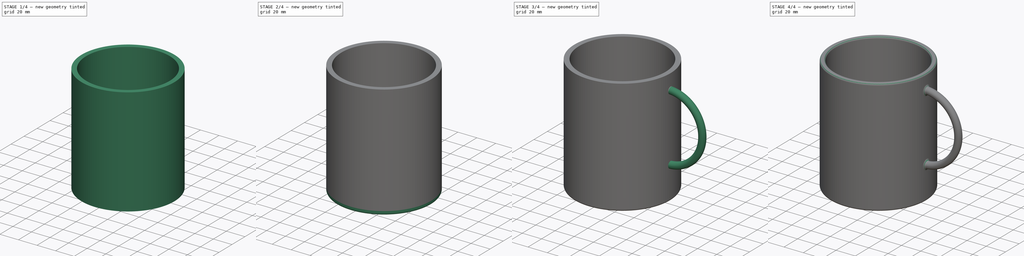
[diagram: build sequence overview — one tinted view per stage of 4, left to right]
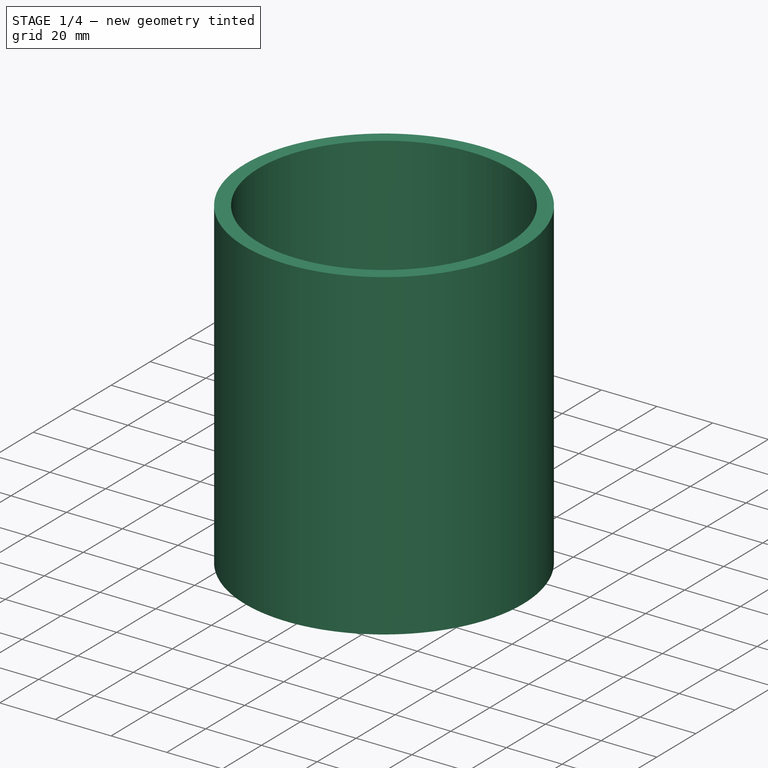
[diagram: stage 1 of 4 — iso view after this stage's code; geometry added in this stage tinted green]
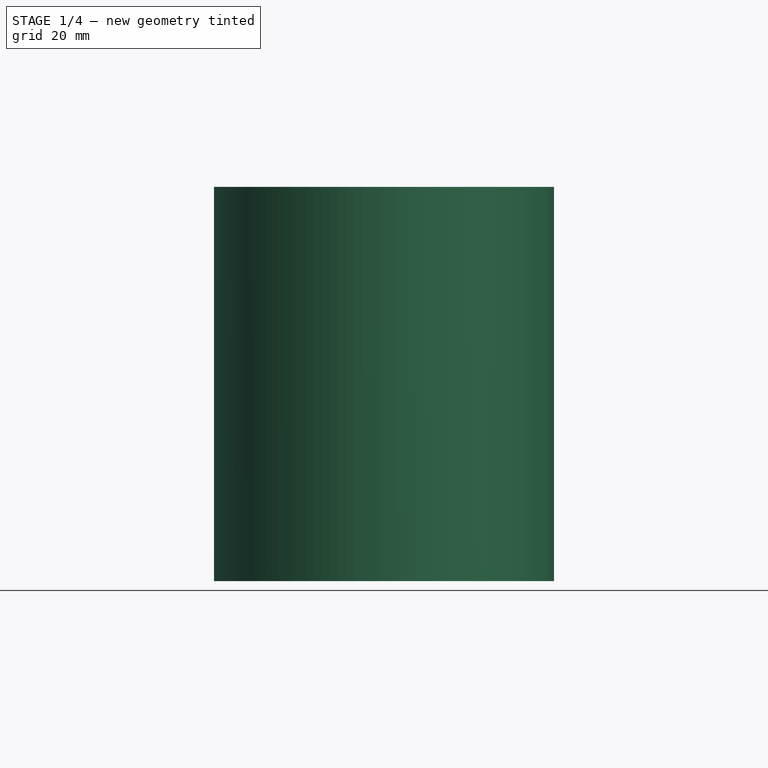
[diagram: stage 1 of 4 — front view after this stage's code; geometry added in this stage tinted green]
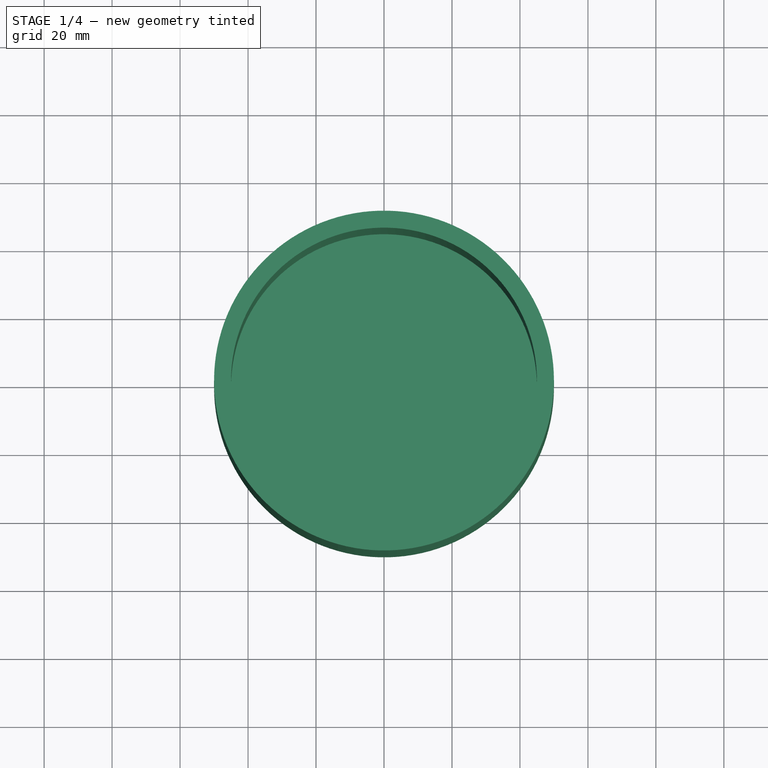
[diagram: stage 1 of 4 — top view after this stage's code; geometry added in this stage tinted green]
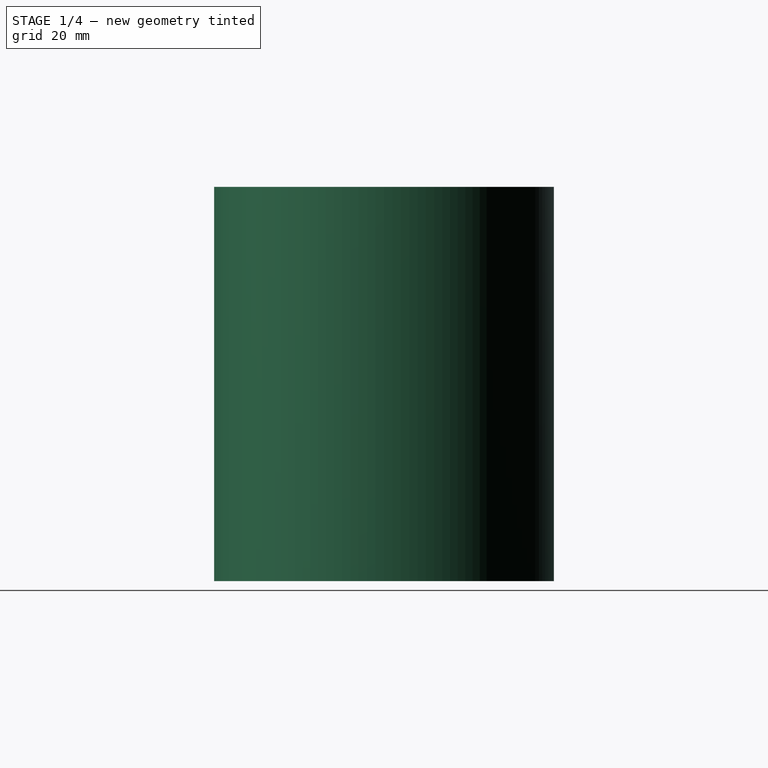
[diagram: stage 1 of 4 — right view after this stage's code; geometry added in this stage tinted green]
FCSTD DOCUMENT  (FreeCAD 2023.521R36908 (Git))
Label: mug-design
License: All rights reserved
objects: Sketcher::SketchObject×5, PartDesign::Fillet×5, PartDesign::Pad×3, Spreadsheet::Sheet×1, PartDesign::Plane×1, PartDesign::AdditivePipe×1, PartDesign::Body×1, App::Part×1
note: 39 computed .brp shape members not serialized (recipe doc carries the construction recipe); baked Part::Feature solids carry a one-line shape summary decoded from their .brp

FEATURE [Sketcher::SketchObject] Sketch  label="cylinder"
  ArcFitTolerance = 1e-06
  AttachmentSupport = -> [XY_Plane]
  ExternalBSplineMaxDegree = 5
  ExternalBSplineTolerance = 0.0001
  FullyConstrained = true
  InternalTolerance = 1e-06
  InvalidShape = false
  MakeInternals = false
  MapMode = 5
  Support = -> [XY_Plane]
  TreeRank = 14
  ValidateShape = false
  expr: Constraints[1] = Spreadsheet.cup_outer_radius
  expr: Constraints[3] = <<parameters>>.cup_outer_radius - <<parameters>>.cup_thickness
  sketch-geometry (2):
    g0: Circle CenterX=0 CenterY=0 CenterZ=0 NormalX=0 NormalY=0 NormalZ=1 AngleXU=0 Radius=50
    g1: Circle CenterX=0 CenterY=0 CenterZ=0 NormalX=0 NormalY=0 NormalZ=1 AngleXU=0 Radius=45
  constraints (4):
    c: Coincident(g0,g-1)
    c: Radius(g0) = 50
    c: Coincident(g1,g0)
    c: Radius(g1) = 45
FEATURE [Spreadsheet::Sheet] Spreadsheet  label="parameters"
  PythonMode = false
  ShowCells = 0
  TreeRank = 15
  cells = A1=cup_outer_radius; B1(cup_outer_radius)=50; A2=cup_thickness; B2(cup_thickness)=5; A3=cup_height; B3(cup_height)=120; A5=base_thickness; B5(base_thickness)==B2; A6=base_foot_height; B6(base_foot_height)=4; A7=base_height; B7(base_height)==B5 + B6; A9=base_foot_outer_fillet; B9(base_foot_outer_fillet)=2; A10=base_foot_inner_fillet; B10(base_foot_inner_fillet)=2; A11=base_foot_inner_top_fillet; B11(base_foot_inner_top_fillet)=3; A13=handle_merge_depth; B13(handle_merge_depth)=2; A14=handle_radius; B14(handle_radius)=35; A15=handle_thickness_radius; B15(handle_thickness_radius)=3.5; A16=handle_fillet; B16(handle_fillet)=2; A17=cup_top_fillet; B17(cup_top_fillet)=2; A20=cup_text_size; B20(cup_text_size)=8
FEATURE [PartDesign::Pad] Pad  label="cylinder001"
  AddSubType = 0
  AlongSketchNormal = false
  AutoTaperInnerAngle = true
  CheckUpToFaceLimits = true
  ClaimChildren = false
  Direction = (0,0,1)
  Fit = 0
  FitJoin = 0
  InnerFit = 0
  InnerFitJoin = 0
  InvalidShape = false
  Length = 111
  Length2 = 10
  Linearize = true
  NewSolid = false
  Profile = -> Sketch [Edge2,Edge1]
  ReferenceAxis = -> Sketch [N_Axis]
  Suppress = false
  TaperInnerAngle = 0
  TaperInnerAngleRev = 0
  TreeRank = 16
  Type = 0
  ValidateShape = true
  _ProfileBasedVersion = 1
  expr: Length = <<parameters>>.cup_height - <<parameters>>.base_height
FEATURE [Sketcher::SketchObject] Sketch001  label="flate_base"
  ArcFitTolerance = 1e-06
  AttachmentSupport = -> [Pad]
  ExternalBSplineMaxDegree = 5
  ExternalBSplineTolerance = 0.0001
  FullyConstrained = true
  InternalTolerance = 1e-06
  InvalidShape = false
  MakeInternals = false
  MapMode = 5
  Placement = pos=(0,0,0) rot=(1,0,0;3.14159rad)
  Support = -> [Pad]
  TreeRank = 29
  ValidateShape = false
  expr: Constraints[1] = <<parameters>>.cup_outer_radius
  sketch-geometry (1):
    g0: Circle CenterX=0 CenterY=0 CenterZ=0 NormalX=0 NormalY=0 NormalZ=1 AngleXU=0 Radius=50
  constraints (2):
    c: Coincident(g0,g-1)
    c: Radius(g0) = 50
FEATURE [PartDesign::Pad] Pad001  label="base_flate"
  AddSubType = 0
  AlongSketchNormal = false
  AutoTaperInnerAngle = true
  BaseFeature = -> Pad
  CheckUpToFaceLimits = true
  ClaimChildren = false
  Direction = (0,0,-1)
  Fit = 0
  FitJoin = 0
  InnerFit = 0
  InnerFitJoin = 0
  InvalidShape = false
  Length = 5
  Length2 = 10
  Linearize = true
  NewSolid = false
  Profile = -> Sketch001
  ReferenceAxis = -> Sketch001 [N_Axis]
  Suppress = false
  TaperInnerAngle = 0
  TaperInnerAngleRev = 0
  TreeRank = 30
  Type = 0
  ValidateShape = true
  _ProfileBasedVersion = 1
  expr: Length = <<parameters>>.base_thickness
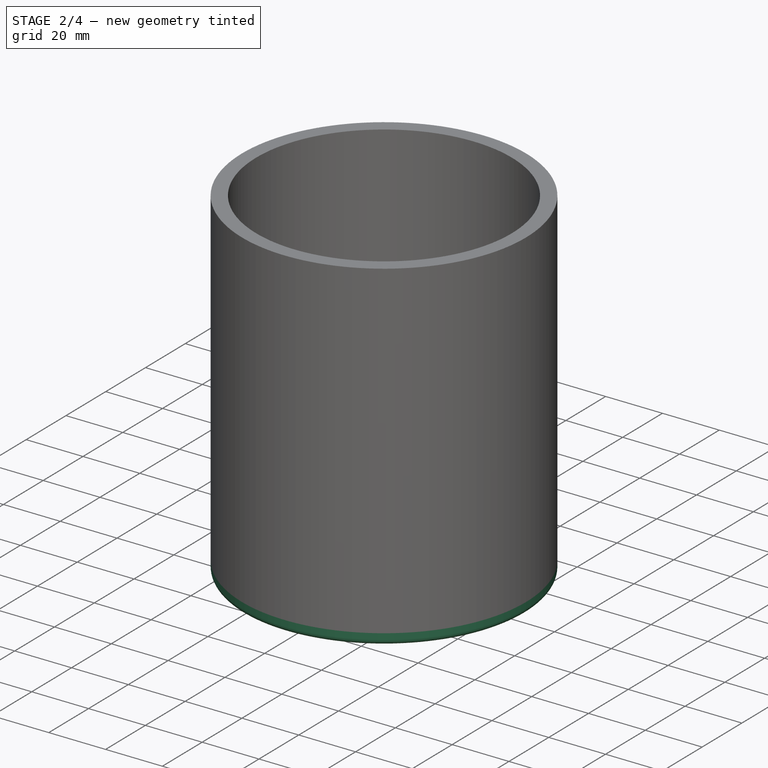
[diagram: stage 2 of 4 — iso view after this stage's code; geometry added in this stage tinted green]
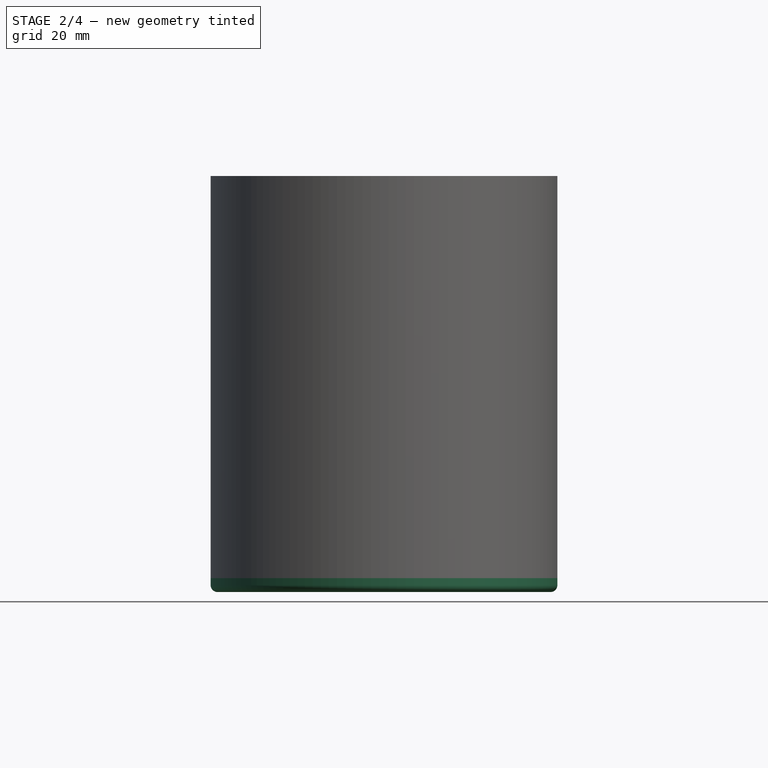
[diagram: stage 2 of 4 — front view after this stage's code; geometry added in this stage tinted green]
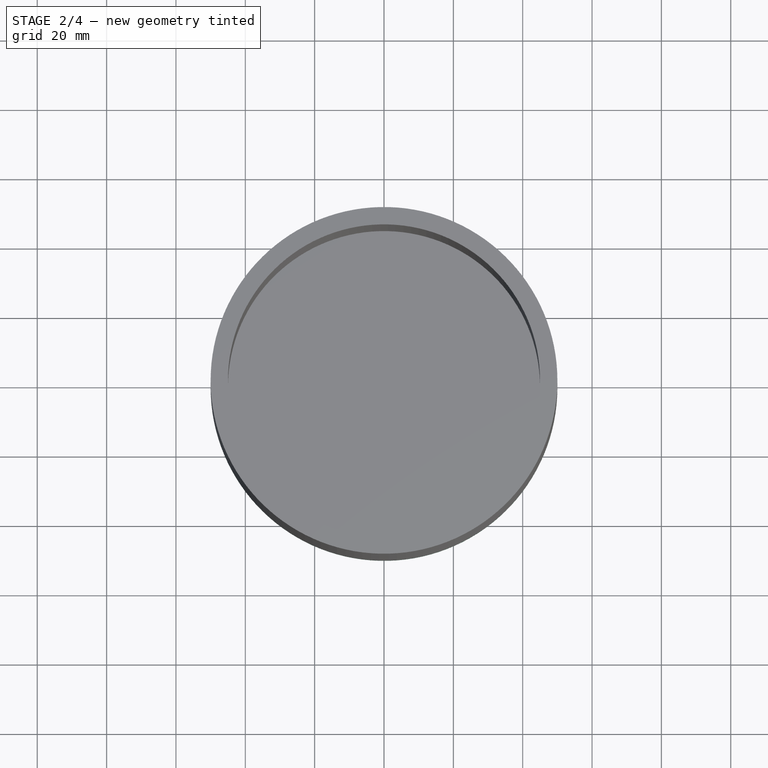
[diagram: stage 2 of 4 — top view after this stage's code; geometry added in this stage tinted green]
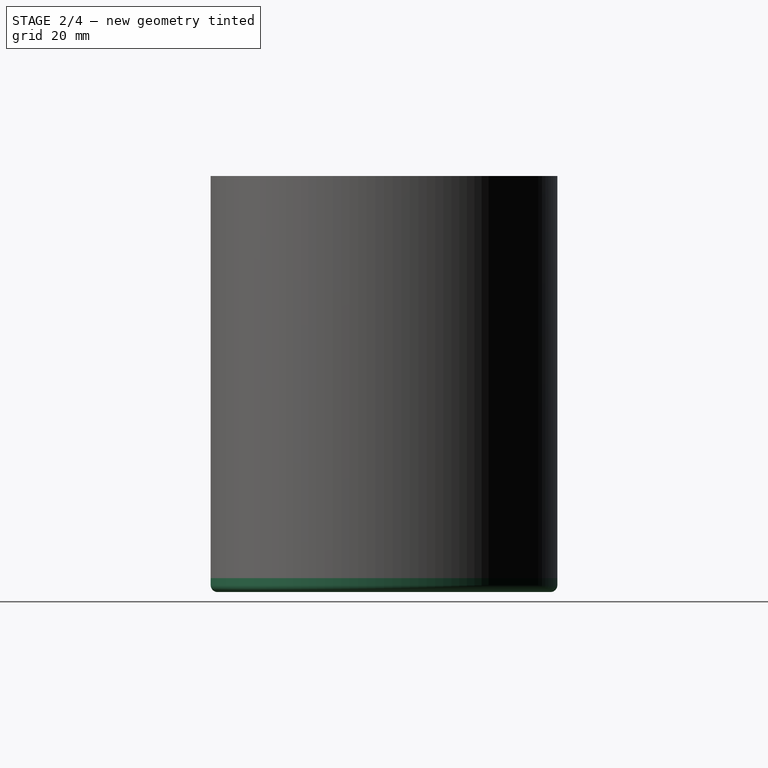
[diagram: stage 2 of 4 — right view after this stage's code; geometry added in this stage tinted green]
FEATURE [Sketcher::SketchObject] Sketch002  label="base_foot"
  ArcFitTolerance = 1e-06
  AttachmentSupport = -> [Pad001]
  ExternalBSplineMaxDegree = 5
  ExternalBSplineTolerance = 0.0001
  FullyConstrained = true
  InternalTolerance = 1e-06
  InvalidShape = false
  MakeInternals = false
  MapMode = 5
  Placement = pos=(0,0,-5) rot=(1,0,0;3.14159rad)
  Support = -> [Pad001]
  TreeRank = 31
  ValidateShape = false
  expr: Constraints[2] = <<parameters>>.cup_outer_radius
  expr: Constraints[3] = <<parameters>>.cup_outer_radius - <<parameters>>.cup_thickness
  sketch-geometry (2):
    g0: Circle CenterX=0 CenterY=0 CenterZ=0 NormalX=0 NormalY=0 NormalZ=1 AngleXU=0 Radius=50
    g1: Circle CenterX=0 CenterY=0 CenterZ=0 NormalX=0 NormalY=0 NormalZ=1 AngleXU=0 Radius=45
  constraints (4):
    c: Coincident(g-1,g1)
    c: Coincident(g0,g1)
    c: Radius(g0) = 50
    c: Radius(g1) = 45
FEATURE [PartDesign::Pad] Pad002  label="base_foot001"
  AddSubType = 0
  AlongSketchNormal = false
  AutoTaperInnerAngle = true
  BaseFeature = -> Pad001
  CheckUpToFaceLimits = true
  ClaimChildren = false
  Direction = (0,0,-1)
  Fit = 0
  FitJoin = 0
  InnerFit = 0
  InnerFitJoin = 0
  InvalidShape = false
  Length = 4
  Length2 = 10
  Linearize = true
  NewSolid = false
  Profile = -> Sketch002
  ReferenceAxis = -> Sketch002 [N_Axis]
  Suppress = false
  TaperInnerAngle = 0
  TaperInnerAngleRev = 0
  TreeRank = 32
  Type = 0
  ValidateShape = true
  _ProfileBasedVersion = 1
  expr: Length = <<parameters>>.base_foot_height
FEATURE [PartDesign::Fillet] Fillet  label="base_foot_outer"
  AddSubType = 0
  Base = -> Pad002 [Edge8]
  BaseFeature = -> Pad002
  InvalidShape = false
  NewSolid = false
  Radius = 2
  SupportTransform = false
  Suppress = false
  TreeRank = 33
  UseAllEdges = false
  ValidateShape = true
  expr: Radius = <<parameters>>.base_foot_outer_fillet
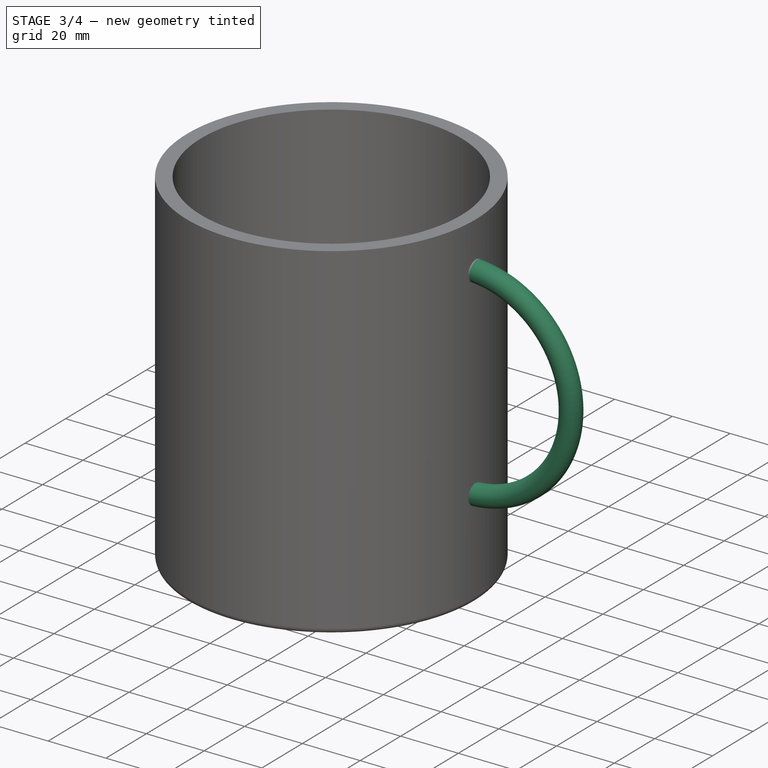
[diagram: stage 3 of 4 — iso view after this stage's code; geometry added in this stage tinted green]
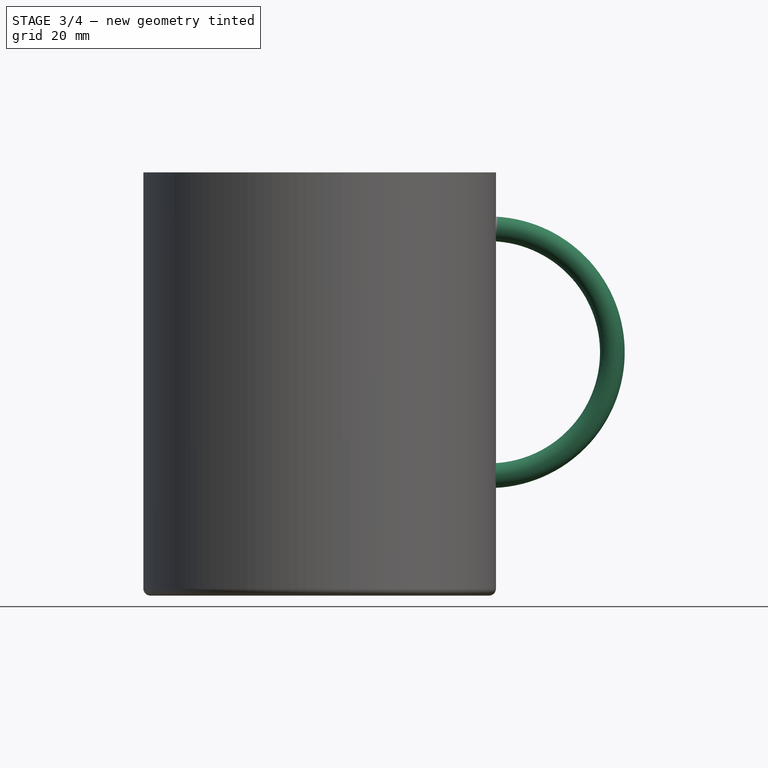
[diagram: stage 3 of 4 — front view after this stage's code; geometry added in this stage tinted green]
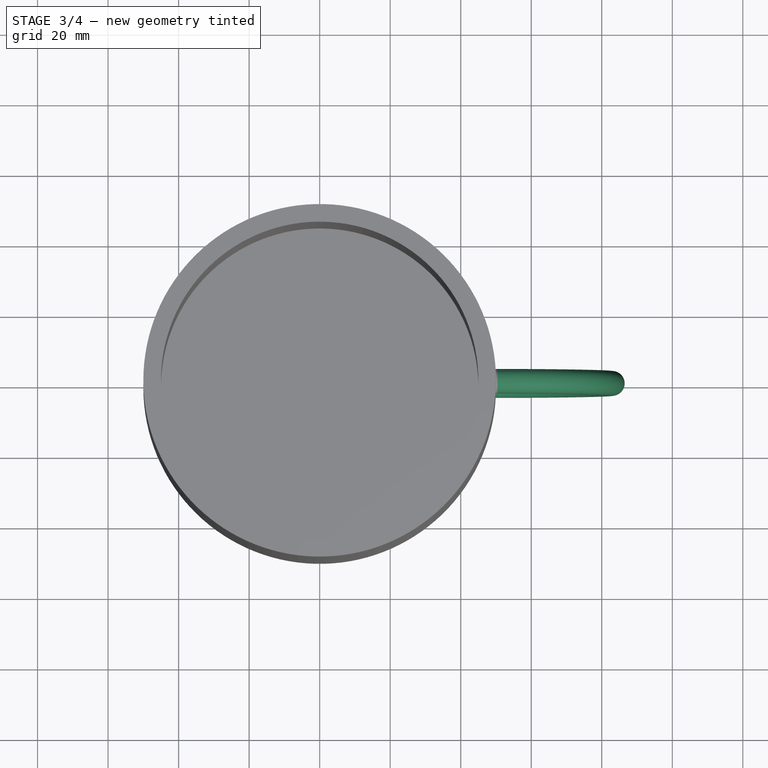
[diagram: stage 3 of 4 — top view after this stage's code; geometry added in this stage tinted green]
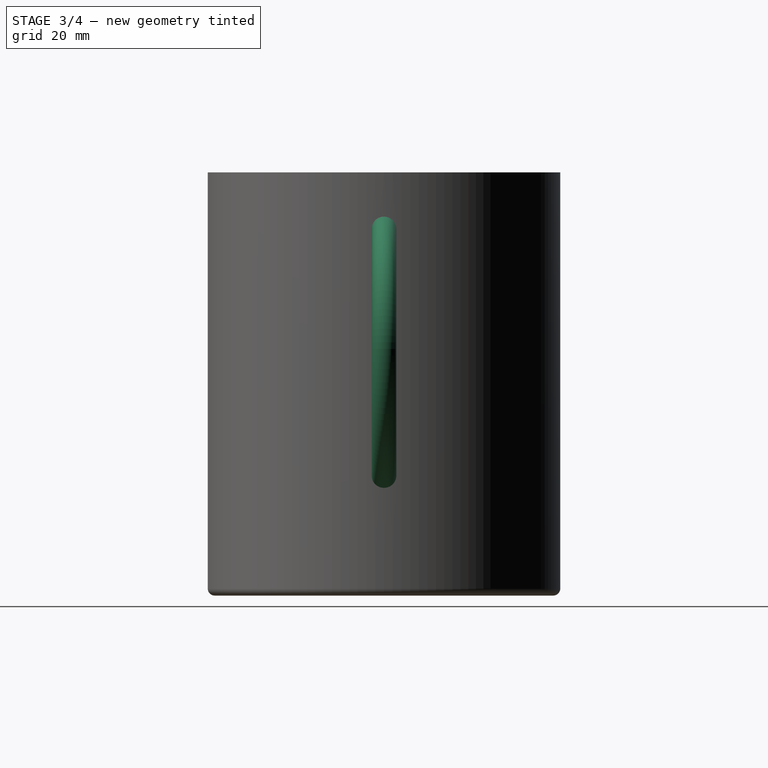
[diagram: stage 3 of 4 — right view after this stage's code; geometry added in this stage tinted green]
FEATURE [PartDesign::Fillet] Fillet001  label="base_foot_inner"
  AddSubType = 0
  Base = -> Fillet [Edge8]
  BaseFeature = -> Fillet
  InvalidShape = false
  NewSolid = false
  Radius = 2
  SupportTransform = false
  Suppress = false
  TreeRank = 34
  UseAllEdges = false
  ValidateShape = true
  expr: Radius = <<parameters>>.base_foot_inner_fillet
FEATURE [PartDesign::Fillet] Fillet002  label="base_foot_inner_top"
  AddSubType = 0
  Base = -> Fillet001 [Edge8]
  BaseFeature = -> Fillet001
  InvalidShape = false
  NewSolid = false
  Radius = 3
  SupportTransform = false
  Suppress = false
  TreeRank = 35
  UseAllEdges = false
  ValidateShape = true
  expr: Radius = <<parameters>>.base_foot_inner_top_fillet
FEATURE [PartDesign::Plane] DatumPlane  label="DatumPlane (Handle)"
  AttachmentOffset = pos=(0,0,48) rot=(0,0,1;0rad)
  AttachmentSupport = -> [YZ_Plane]
  InvalidShape = false
  Length = 10
  MapMode = 5
  MinimumLength = 10
  MinimumWidth = 10
  Placement = pos=(48,-1.07e-14,1.07e-14) rot=(0.57735,0.57735,0.57735;2.0944rad)
  ResizeMode = 0
  Support = -> [YZ_Plane]
  TreeRank = 36
  ValidateShape = false
  Width = 10
  expr: AttachmentOffset.Base.z = <<parameters>>.cup_outer_radius - <<parameters>>.handle_merge_depth
FEATURE [Sketcher::SketchObject] Sketch003  label="handle"
  ArcFitTolerance = 1e-06
  AttachmentSupport = -> [XZ_Plane]
  ExternalBSplineMaxDegree = 5
  ExternalBSplineTolerance = 0.0001
  FullyConstrained = true
  InternalTolerance = 1e-06
  InvalidShape = false
  MakeInternals = false
  MapMode = 5
  Placement = pos=(0,0,0) rot=(1,0,0;1.5708rad)
  Support = -> [XZ_Plane]
  TreeRank = 37
  ValidateShape = false
  expr: Constraints[0] = <<parameters>>.cup_outer_radius - <<parameters>>.handle_merge_depth
  expr: Constraints[3] = <<parameters>>.handle_radius
  expr: Constraints[4] = <<parameters>>.cup_height / 2
  sketch-geometry (1):
    g0: ArcOfCircle CenterX=48 CenterY=60 CenterZ=0 NormalX=0 NormalY=0 NormalZ=1 AngleXU=0 Radius=35 StartAngle=4.71239 EndAngle=7.85398
  constraints (5):
    c: DistanceX(g-1,g0) = 48
    c: Vertical(g0,g0)
    c: Vertical(g0,g0)
    c: Radius(g0) = 35
    c: DistanceY(g-1,g0) = 60
FEATURE [Sketcher::SketchObject] Sketch004
  ArcFitTolerance = 1e-06
  AttachmentSupport = -> [DatumPlane]
  ExternalBSplineMaxDegree = 5
  ExternalBSplineTolerance = 0.0001
  FullyConstrained = true
  InternalTolerance = 1e-06
  InvalidShape = false
  MakeInternals = false
  MapMode = 5
  Placement = pos=(48,-1.07e-14,1.07e-14) rot=(0.57735,0.57735,0.57735;2.0944rad)
  Support = -> [DatumPlane]
  TreeRank = 38
  ValidateShape = false
  expr: Constraints[0] = <<parameters>>.handle_thickness_radius
  expr: Constraints[2] = (<<parameters>>.cup_height - 2 * <<parameters>>.handle_radius) / 2
  sketch-geometry (1):
    g0: Circle CenterX=0 CenterY=25 CenterZ=0 NormalX=0 NormalY=0 NormalZ=1 AngleXU=0 Radius=3.5
  constraints (3):
    c: Radius(g0) = 3.5
    c: Vertical(g0,g-1)
    c: DistanceY(g-1,g0) = 25
FEATURE [PartDesign::AdditivePipe] Pipe
  AddSubType = 0
  AuxilleryCurvelinear = true
  AuxillerySpineTangent = false
  BaseFeature = -> Fillet002
  Binormal = (0,0,0)
  ClaimChildren = false
  Fit = 0
  FitJoin = 0
  InnerFit = 0
  InnerFitJoin = 0
  InvalidShape = false
  Linearize = true
  Mode = 0
  MoveProfile = false
  NewSolid = false
  Profile = -> Sketch004
  RotateProfile = false
  Spine = -> Sketch003 [Edge1]
  SpineTangent = false
  Suppress = false
  Transformation = 0
  Transition = 1
  TreeRank = 39
  ValidateShape = true
  _ProfileBasedVersion = 2
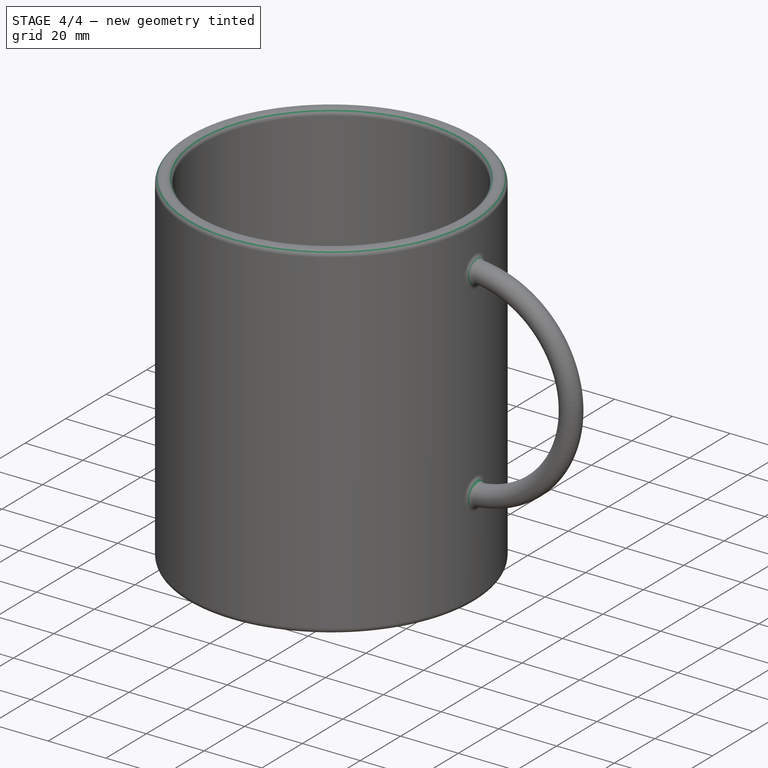
[diagram: stage 4 of 4 — iso view after this stage's code; geometry added in this stage tinted green]
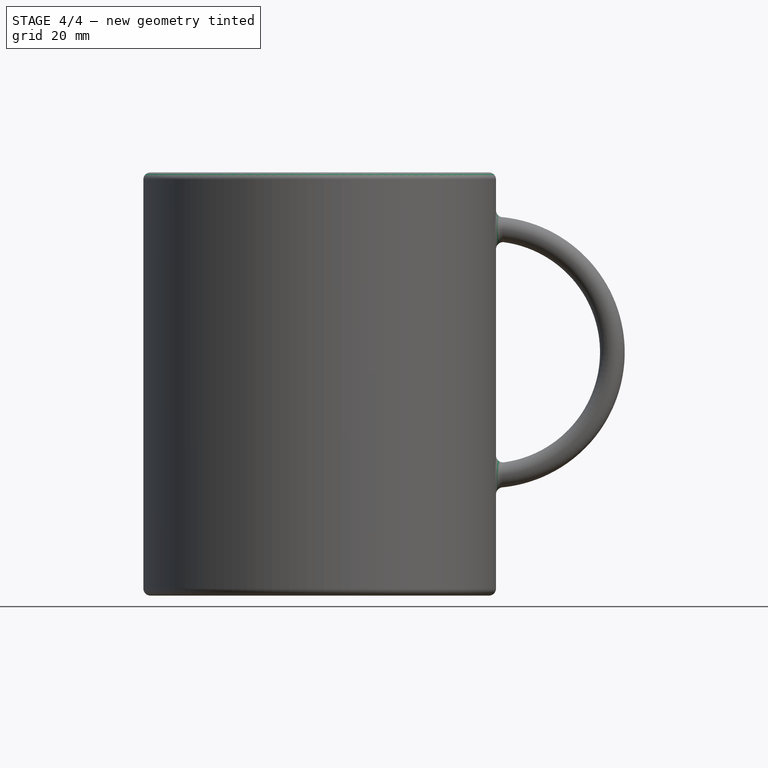
[diagram: stage 4 of 4 — front view after this stage's code; geometry added in this stage tinted green]
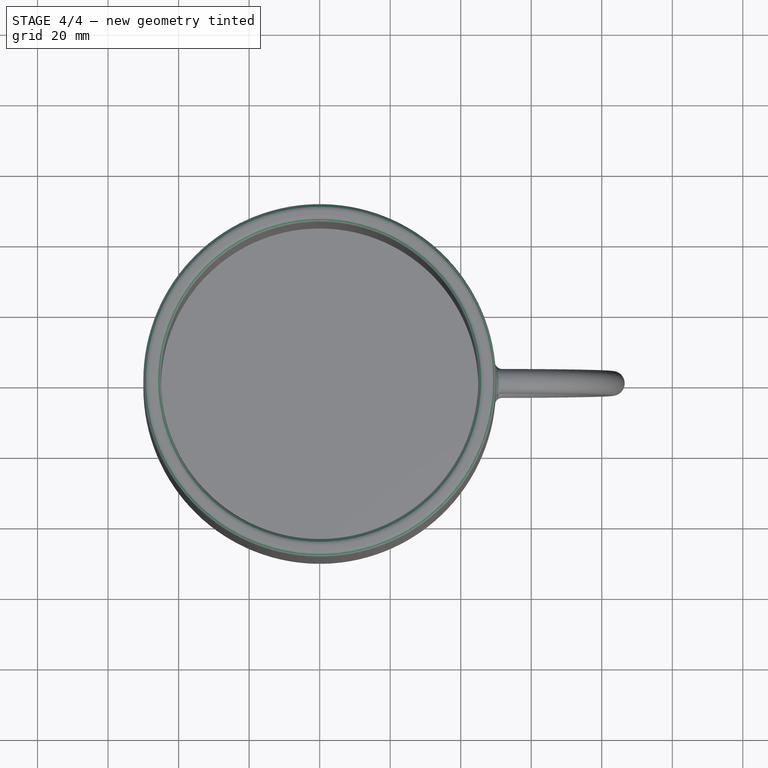
[diagram: stage 4 of 4 — top view after this stage's code; geometry added in this stage tinted green]
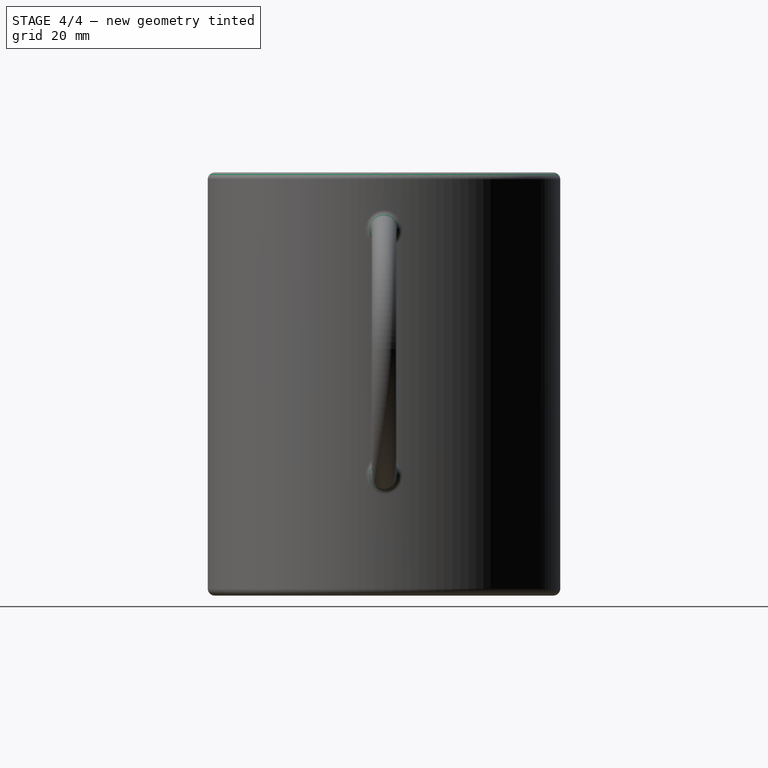
[diagram: stage 4 of 4 — right view after this stage's code; geometry added in this stage tinted green]
FEATURE [PartDesign::Fillet] Fillet003  label="handle_fillet"
  AddSubType = 0
  Base = -> Pipe [Edge19,Edge20,Edge21,Edge22,Edge14,Edge16]
  BaseFeature = -> Pipe
  InvalidShape = false
  NewSolid = false
  Radius = 2
  SupportTransform = false
  Suppress = false
  TreeRank = 40
  UseAllEdges = false
  ValidateShape = true
  expr: Radius = <<parameters>>.handle_fillet
FEATURE [PartDesign::Fillet] Fillet004  label="cup_top_fillet"
  AddSubType = 0
  Base = -> Fillet003 [Edge23,Edge9]
  BaseFeature = -> Fillet003
  InvalidShape = false
  NewSolid = false
  Radius = 2
  SupportTransform = false
  Suppress = false
  TreeRank = 41
  UseAllEdges = false
  ValidateShape = true
  expr: Radius = <<parameters>>.cup_top_fillet
FEATURE [PartDesign::Body] Body
  AutoGroupSolids = false
  ClaimAllChildren = false
  ExportMode = 0
  Group = -> [Sketch,Pad,Sketch001,Pad001,Sketch002,Pad002,Fillet,Fillet001,Fillet002,DatumPlane,Sketch003,Sketch004,Pipe,Fillet003,Fillet004]
  InvalidShape = false
  Origin = -> Origin001
  Placement = pos=(0,0,9) rot=(0,0,1;0rad)
  Tip = -> Fillet004
  TreeRank = 13
  ValidateShape = false
  _ExportChildren = -> [Pad,Pad001,Pad002,Fillet,Fillet001,Fillet002,DatumPlane,Pipe,Fillet003,Fillet004]
  _GroupVersion = 1
  expr: Placement.Base.z = <<parameters>>.base_height
FEATURE [App::Part] Part
  ClaimAllChildren = false
  ExportMode = 1
  Group = -> [Body,Spreadsheet]
  Origin = -> Origin
  TreeRank = 3
  _ExportChildren = -> [Body,Spreadsheet]
  _GroupVersion = 1
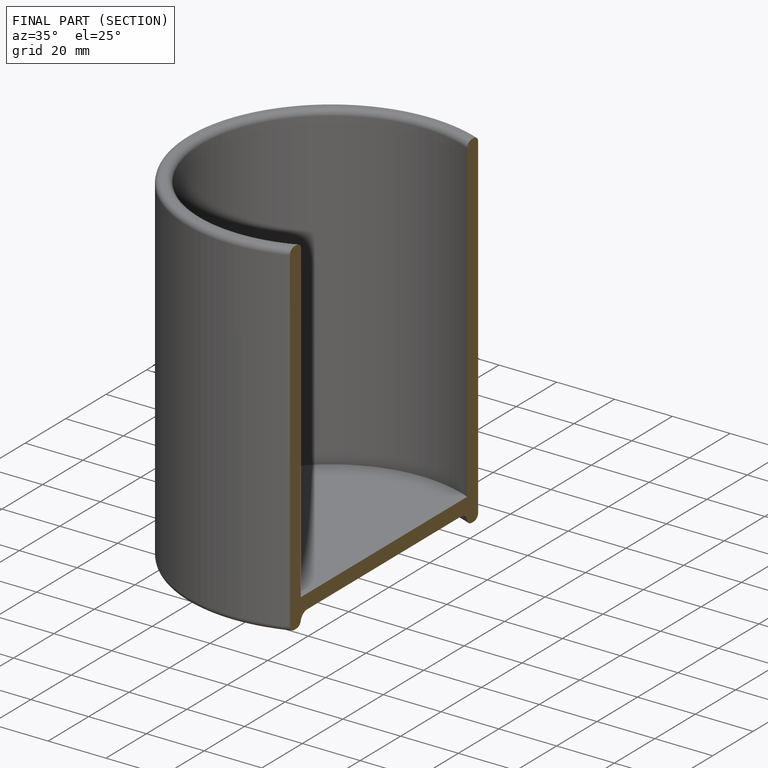
[diagram: finished part — half-section view (interior)]
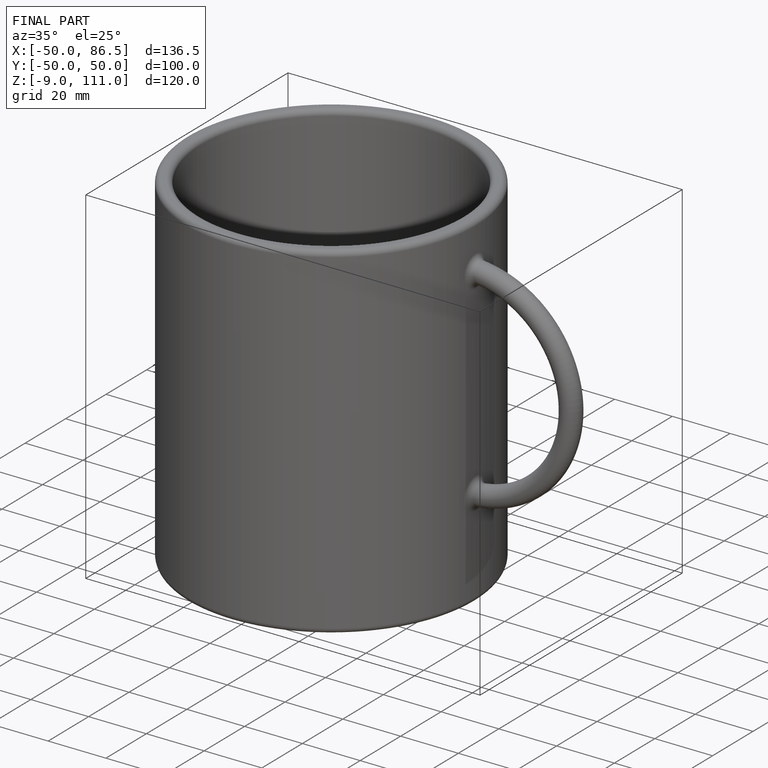
[diagram: finished part — iso view with bounding-box wireframe]
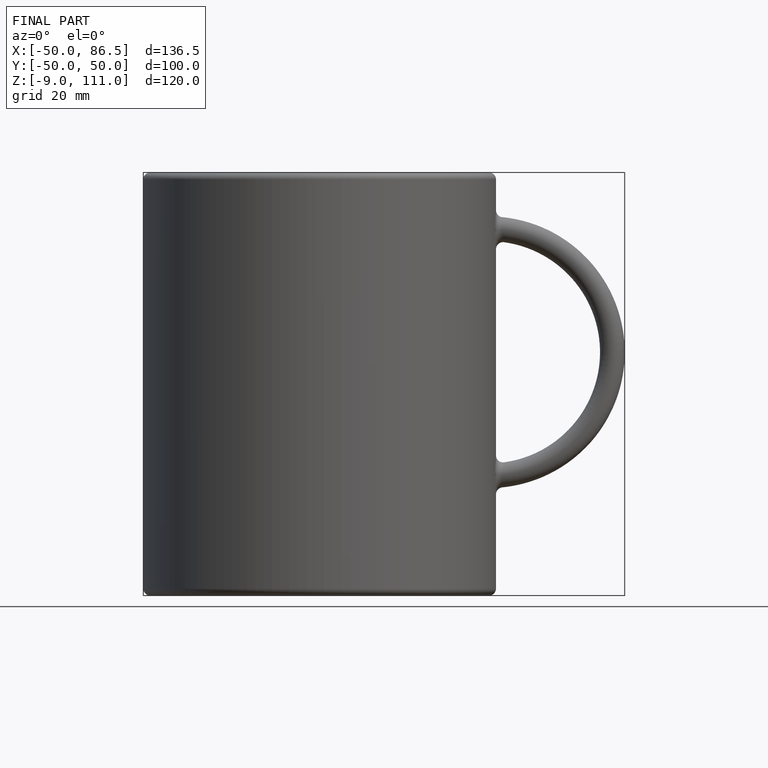
[diagram: finished part — front view with bounding-box wireframe]
